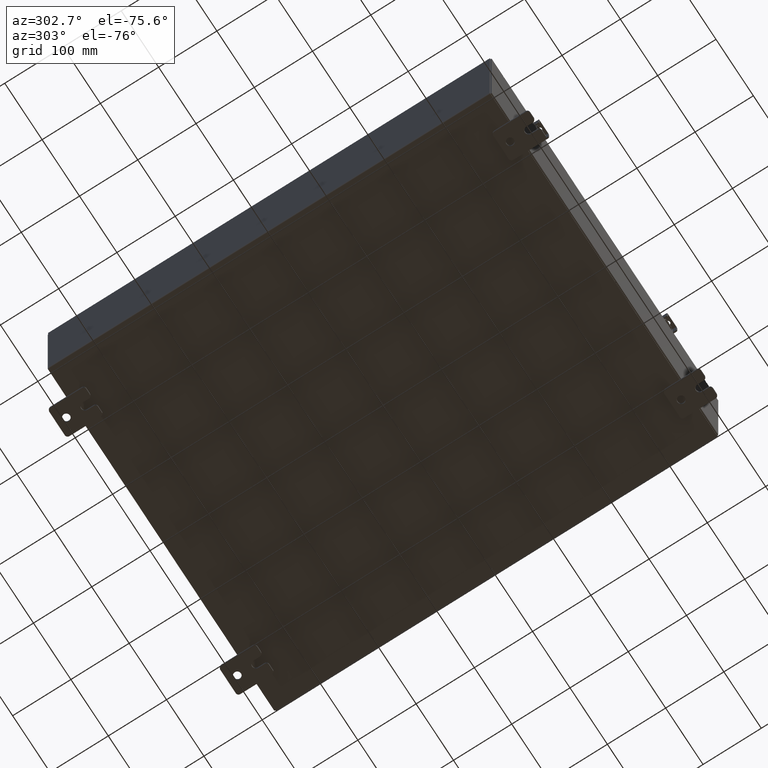
[diagram: clean part render]
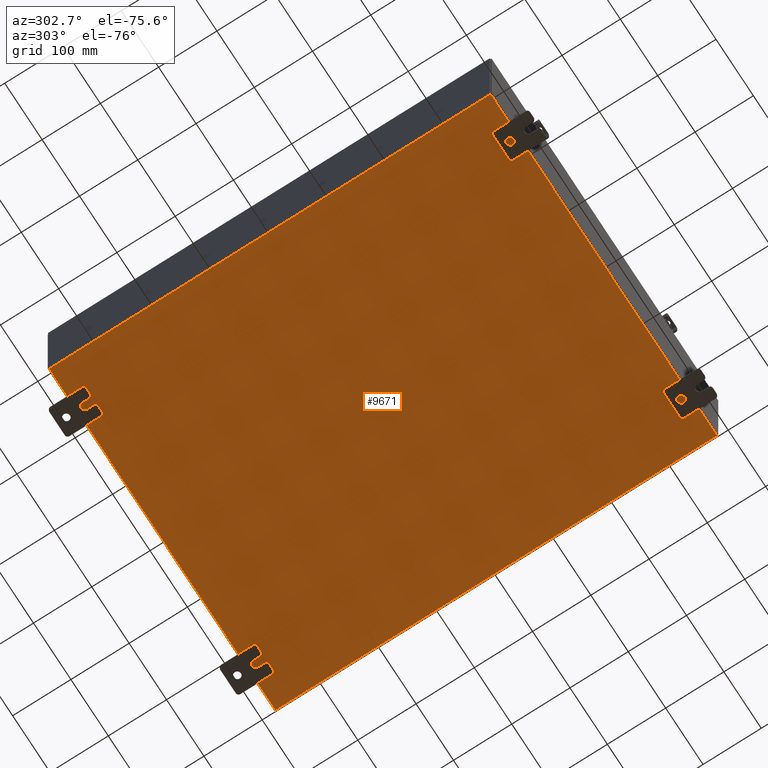
[diagram: same view with one face highlighted and labeled with its STEP entity id]
A machine part, auxiliary view. The second image highlights one B-rep face of the part: STEP entity #9671.
In plain terms, the highlighted planar face has unit normal (0, 0, -1).
Its self-contained STEP definition (entity closure, byte-faithful):
#778 = CARTESIAN_POINT ( 'NONE',  ( -12.00000000000000500, 14.92530000000000000, -0.07470000000000000300 ) ) ;
#824 = DIRECTION ( 'NONE',  ( -0.0000000000000000000, 1.000000000000000000, -0.0000000000000000000 ) ) ;
#1568 = LINE ( 'NONE', #7777, #10203 ) ;
#3713 = CARTESIAN_POINT ( 'NONE',  ( -11.91230000000000500, -14.92530000000000000, -0.07469999999999994700 ) ) ;
#4078 = ORIENTED_EDGE ( 'NONE', *, *, #13464, .F. ) ;
#4240 = VERTEX_POINT ( 'NONE', #4327 ) ;
#4327 = CARTESIAN_POINT ( 'NONE',  ( -11.91230000000000500, 14.92530000000000000, -0.07470000000000000300 ) ) ;
#5118 = PLANE ( 'NONE',  #28347 ) ;
#7195 = DIRECTION ( 'NONE',  ( 1.000000000000000000, 0.0000000000000000000, 0.0000000000000000000 ) ) ;
#7460 = FACE_OUTER_BOUND ( 'NONE', #23279, .T. ) ;
#7485 = VERTEX_POINT ( 'NONE', #32502 ) ;
#7777 = CARTESIAN_POINT ( 'NONE',  ( 11.91229999999999700, 14.92530000000000000, -0.07470000000000226500 ) ) ;
#9308 = LINE ( 'NONE', #3713, #31445 ) ;
#9627 = EDGE_CURVE ( 'NONE', #29436, #7485, #1568, .T. ) ;
#9671 = ADVANCED_FACE ( 'NONE', ( #7460 ), #5118, .T. ) ;
#10203 = VECTOR ( 'NONE', #28019, 39.37007874015748100 ) ;
#10963 = CARTESIAN_POINT ( 'NONE',  ( 0.0000000000000000000, 0.0000000000000000000, -0.07470000000000000300 ) ) ;
#12773 = LINE ( 'NONE', #778, #34875 ) ;
#12964 = CARTESIAN_POINT ( 'NONE',  ( -11.91230000000000500, -14.92530000000000000, -0.07469999999999994700 ) ) ;
#13464 = EDGE_CURVE ( 'NONE', #29436, #4240, #12773, .T. ) ;
#13885 = VECTOR ( 'NONE', #7195, 39.37007874015748100 ) ;
#13895 = DIRECTION ( 'NONE',  ( -1.000000000000000000, 0.0000000000000000000, -0.0000000000000000000 ) ) ;
#14806 = LINE ( 'NONE', #21687, #13885 ) ;
#21087 = DIRECTION ( 'NONE',  ( -1.000000000000000000, -0.0000000000000000000, -0.0000000000000000000 ) ) ;
#21219 = EDGE_CURVE ( 'NONE', #33943, #4240, #9308, .T. ) ;
#21687 = CARTESIAN_POINT ( 'NONE',  ( -12.00000000000000500, -14.92530000000000000, -0.07470000000000000300 ) ) ;
#23279 = EDGE_LOOP ( 'NONE', ( #24978, #25518, #4078, #28873 ) ) ;
#24978 = ORIENTED_EDGE ( 'NONE', *, *, #34626, .F. ) ;
#25518 = ORIENTED_EDGE ( 'NONE', *, *, #21219, .T. ) ;
#28019 = DIRECTION ( 'NONE',  ( -0.0000000000000000000, -1.000000000000000000, 8.208677865577646300E-017 ) ) ;
#28347 = AXIS2_PLACEMENT_3D ( 'NONE', #10963, #31152, #13895 ) ;
#28873 = ORIENTED_EDGE ( 'NONE', *, *, #9627, .T. ) ;
#29436 = VERTEX_POINT ( 'NONE', #34505 ) ;
#31152 = DIRECTION ( 'NONE',  ( 0.0000000000000000000, 0.0000000000000000000, -1.000000000000000000 ) ) ;
#31445 = VECTOR ( 'NONE', #824, 39.37007874015748100 ) ;
#32502 = CARTESIAN_POINT ( 'NONE',  ( 11.91229999999998800, -14.92530000000000000, -0.07470000000000000300 ) ) ;
#33943 = VERTEX_POINT ( 'NONE', #12964 ) ;
#34505 = CARTESIAN_POINT ( 'NONE',  ( 11.91229999999999700, 14.92530000000000000, -0.07470000000000226500 ) ) ;
#34626 = EDGE_CURVE ( 'NONE', #33943, #7485, #14806, .T. ) ;
#34875 = VECTOR ( 'NONE', #21087, 39.37007874015748100 ) ;